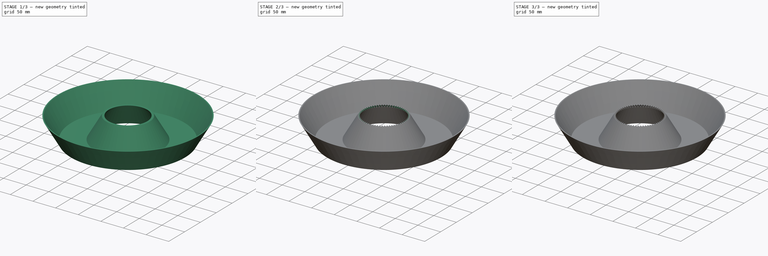
[diagram: build sequence overview — one tinted view per stage of 3, left to right]
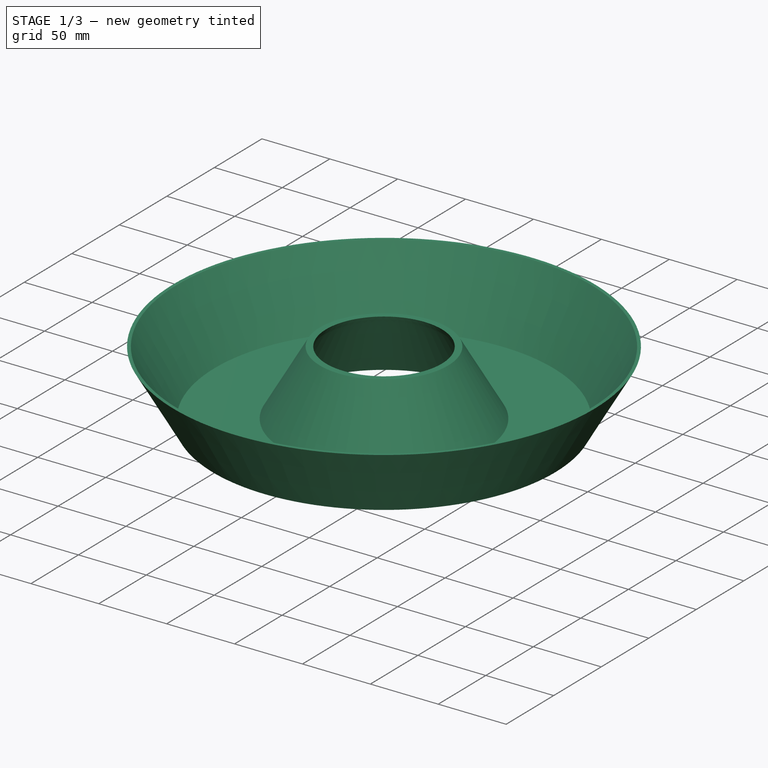
[diagram: stage 1 of 3 — iso view after this stage's code; geometry added in this stage tinted green]
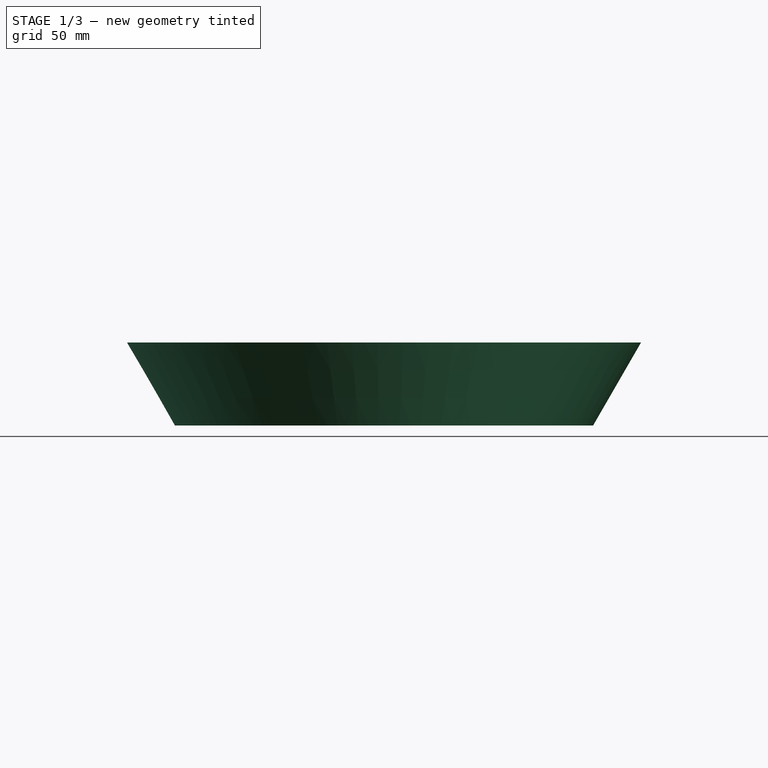
[diagram: stage 1 of 3 — front view after this stage's code; geometry added in this stage tinted green]
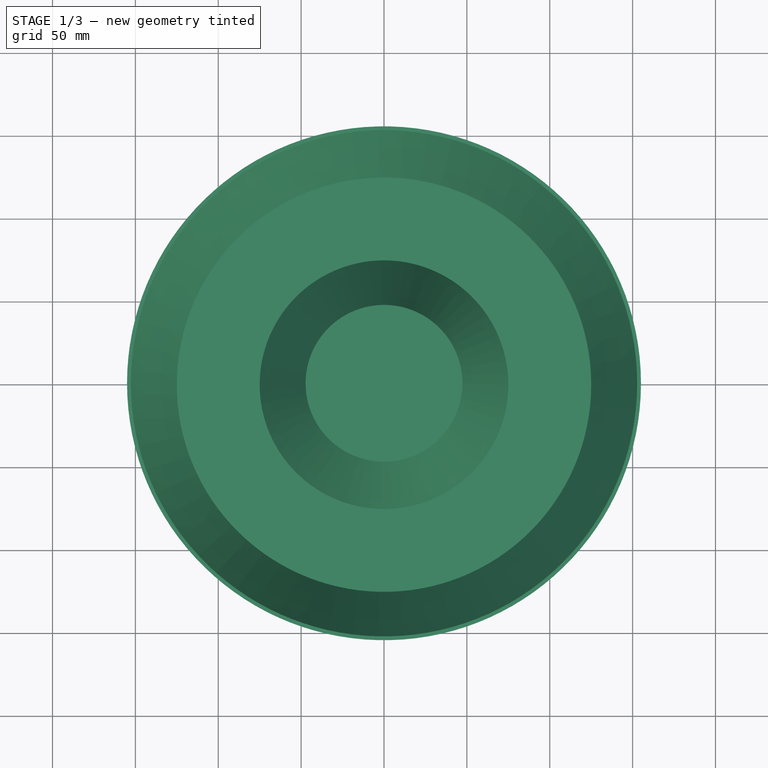
[diagram: stage 1 of 3 — top view after this stage's code; geometry added in this stage tinted green]
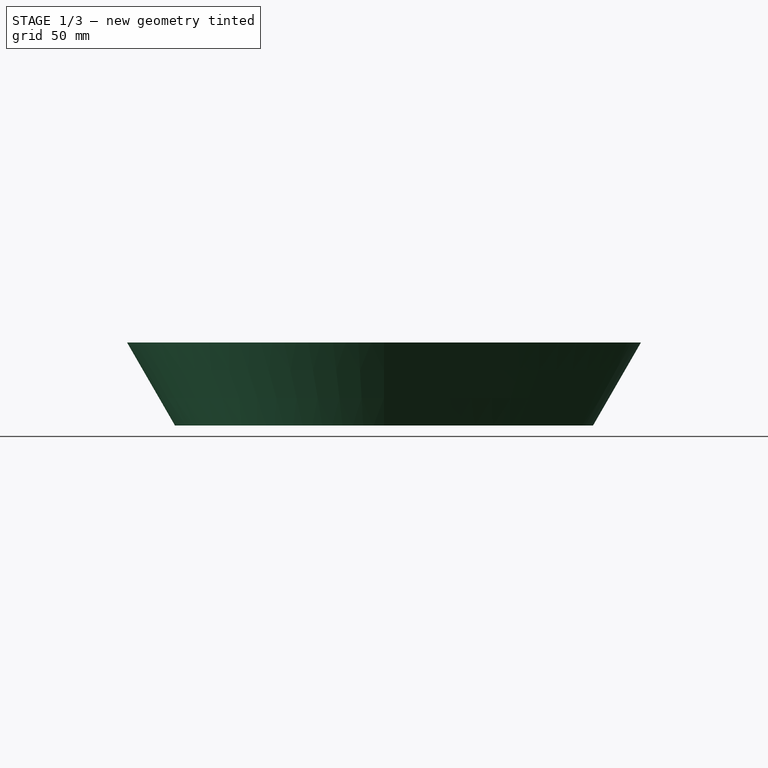
[diagram: stage 1 of 3 — right view after this stage's code; geometry added in this stage tinted green]
FCSTD DOCUMENT  (FreeCAD 1.1R42925 (Git))
Label: stepper_motor_gear
License: All rights reserved
LicenseURL: https://en.wikipedia.org/wiki/All_rights_reserved
objects: App::Point×3, Sketcher::SketchObject×3, PartDesign::Body×3, Part::FeaturePython×1, PartDesign::FeatureBase×1, PartDesign::Pocket×1, App::VarSet×1, Part::DatumPlane×1, PartDesign::AdditivePipe×1, PartDesign::FeaturePython×1, Part::Cut×1
note: 21 computed .brp shape members not serialized (recipe doc carries the construction recipe); baked Part::Feature solids carry a one-line shape summary decoded from their .brp

FEATURE [PartDesign::Body] Body  label="stepper_gear"
  AllowCompound = false
  BaseFeature = -> BevelGear
  Group = -> [BaseFeature,Sketch001,Pocket]
  Origin = -> Origin
  Tip = -> Pocket
FEATURE [App::Point] Origin003
  Role = Origin
FEATURE [Sketcher::SketchObject] Sketch
  ArcFitTolerance = 1e-06
  AttachmentSupport = -> [Origin002]
  ExternalTypes = [0]
  FullyConstrained = true
  MakeInternals = false
  MapMode = 5
  expr: Constraints[1] = 2 * VarSet.outer_ring_center_radius
  sketch-geometry (1):
    g0: Circle CenterX=0 CenterY=0 CenterZ=0 NormalX=0 NormalY=0 NormalZ=1 AngleXU=0 Radius=100
  constraints (2):
    c: Coincident(g0,g-1)
    c: Diameter(g0) = 200
FEATURE [App::VarSet] VarSet
  outer_ring_bottom_width = 50
  outer_ring_center_radius = 100
  outer_ring_height = 50
  outer_ring_sides_angle = 30
  wall_thickness = 2
  expr: outer_ring_bottom_width = 50
  expr: outer_ring_center_radius = 100
  expr: outer_ring_height = 50
  expr: outer_ring_sides_angle = 30
FEATURE [Part::DatumPlane] DatumPlane
  AttachmentSupport = -> [Sketch]
  MapMode = 7
  Placement = pos=(100,0,0) rot=(1,0,0;1.5708rad)
FEATURE [Sketcher::SketchObject] Sketch002
  ArcFitTolerance = 1e-06
  AttachmentSupport = -> [DatumPlane]
  ExternalTypes = [0]
  FullyConstrained = true
  MakeInternals = false
  MapMode = 5
  Placement = pos=(100,0,0) rot=(1,0,0;1.5708rad)
  expr: Constraints[13] = VarSet.outer_ring_height
  expr: Constraints[16] = VarSet.outer_ring_sides_angle
  expr: Constraints[17] = VarSet.outer_ring_sides_angle
  expr: Constraints[19] = 5
  expr: Constraints[21] = VarSet.wall_thickness * 2
  expr: Constraints[24] = VarSet.wall_thickness
  expr: Constraints[28] = VarSet.outer_ring_bottom_width
  expr: Constraints[7] = VarSet.wall_thickness
  expr: Constraints[8] = VarSet.outer_ring_height
  expr: Constraints[9] = VarSet.wall_thickness
  sketch-geometry (10):
    g0: LineSegment StartX=26.1547 StartY=0 StartZ=0 EndX=55.0222 EndY=50 EndZ=0
    g1: LineSegment StartX=55.0222 StartY=50 StartZ=0 EndX=52.7128 EndY=50 EndZ=0
    g2: LineSegment StartX=52.7128 StartY=50 StartZ=0 EndX=25 EndY=2 EndZ=0
    g3: LineSegment StartX=25 StartY=2 StartZ=0 EndX=-25 EndY=2 EndZ=0
    g4: LineSegment StartX=-25 StartY=2 StartZ=0 EndX=-52.7128 EndY=50 EndZ=0
    g5: LineSegment StartX=-52.7128 StartY=50 StartZ=0 EndX=-57.3316 EndY=50 EndZ=0
    g6: LineSegment StartX=-26.1547 StartY=0 StartZ=0 EndX=26.1547 EndY=0 EndZ=0
    g7: LineSegment StartX=-57.3316 StartY=50 StartZ=0 EndX=-54.4449 EndY=45 EndZ=0
    g8: LineSegment StartX=-52.1355 StartY=45 StartZ=0 EndX=-26.1547 EndY=0 EndZ=0
    g9: LineSegment StartX=-52.1355 StartY=45 StartZ=0 EndX=-54.4449 EndY=45 EndZ=0
  constraints (29):
    c: Coincident(g1,g0)
    c: Coincident(g1,g2)
    c: Coincident(g2,g3)
    c: Coincident(g3,g4)
    c: Coincident(g4,g5)
    c: Horizontal(g5)
    c: Coincident(g6,g0)
    c: Distance(g0,g2) = 2
    c: DistanceY(g6,g4) = 50
    c: DistanceY(g6,g3) = 2
    c: Parallel(g3,g6)
    c: Parallel(g1,g-1)
    c: Parallel(g0,g2)
    c: Distance(g-1,g1) = 50
    c: Symmetric(g6,g0,g-2)
    c: PointOnObject(g0,g-1)
    c: Angle(g2,g-2) = 0.523599
    c: Angle(g-2,g4) = 0.523599
    c: Coincident(g7,g5)
    c: DistanceY(g7,g5) = 5
    c: Parallel(g7,g4)
    c: Distance(g4,g7) = 4
    c: Coincident(g8,g6)
    c: Parallel(g8,g4)
    c: Distance(g4,g8) = 2
    c: Coincident(g9,g8)
    c: Coincident(g9,g7)
    c: Parallel(g9,g5)
    c: DistanceX(g3,g3) = 50
FEATURE [PartDesign::AdditivePipe] AdditivePipe
  AuxiliaryCurvilinear = true
  AuxiliarySpineTangent = false
  Binormal = (0,0,0)
  Mode = 0
  Placement = pos=(100,0,0) rot=(1,0,0;1.5708rad)
  Profile = -> Sketch002
  Refine = true
  Spine = -> Sketch
  SpineTangent = false
  Suppressed = false
  Transformation = 0
  Transition = 0
FEATURE [PartDesign::Body] Body001  label="outer_sections_ring_gear"
  AllowCompound = false
  Group = -> [Sketch,DatumPlane,Sketch002,AdditivePipe]
  Origin = -> Origin002
  Tip = -> AdditivePipe
FEATURE [App::Point] Origin005
  Role = Origin
FEATURE [PartDesign::FeaturePython] BevelGear001  # WARN: FeaturePython — macro-defined, semantics opaque (R4)
  AttacherType = Attacher::AttachEngine3D
  Suppressed = false
  angular_backlash = 0
  backlash = 0
  beta = 0
  clearance = 0.1
  dw = 96
  height = 5
  module = 1.5
  num_teeth = 64
  numpoints = 20
  pitch_angle = 30
  pressure_angle = 20
  reset_origin = true
  version = 1.3.0
  expr: angular_backlash = backlash / dw * 360 ° / pi
  expr: dw = num_teeth * module
  expr: module = 1.5
  expr: num_teeth = 64
  expr: pitch_angle = 30
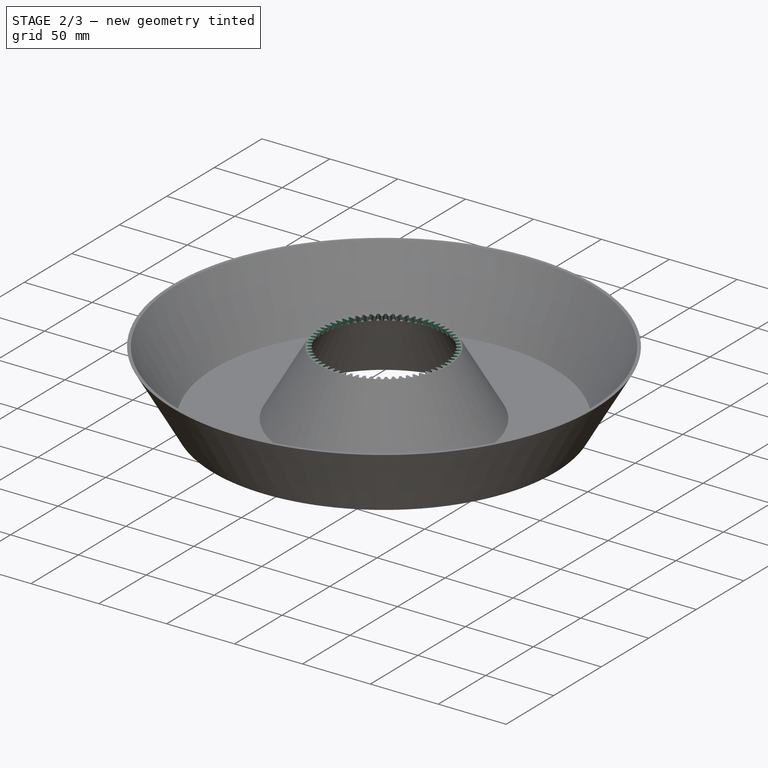
[diagram: stage 2 of 3 — iso view after this stage's code; geometry added in this stage tinted green]
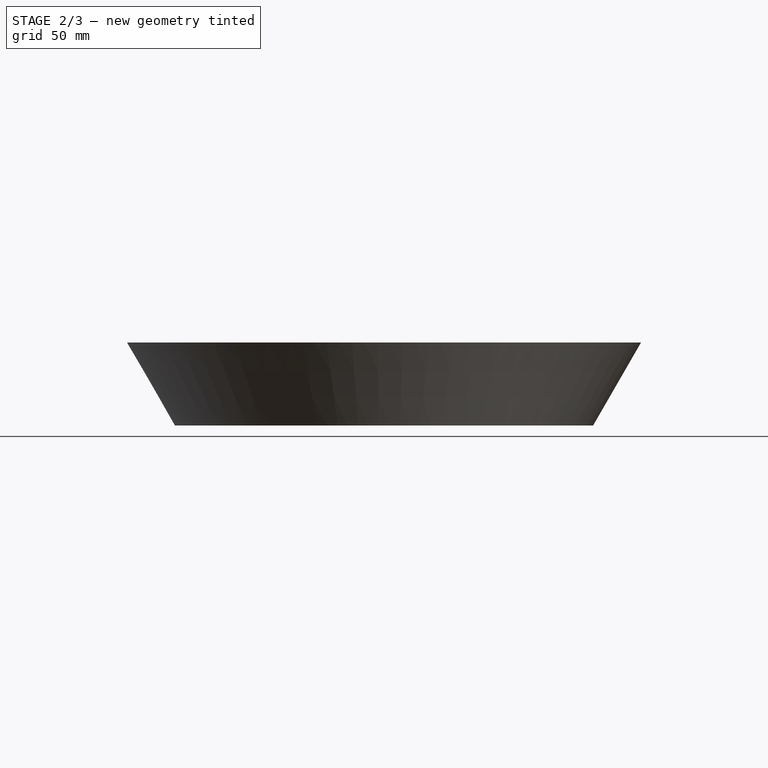
[diagram: stage 2 of 3 — front view after this stage's code; geometry added in this stage tinted green]
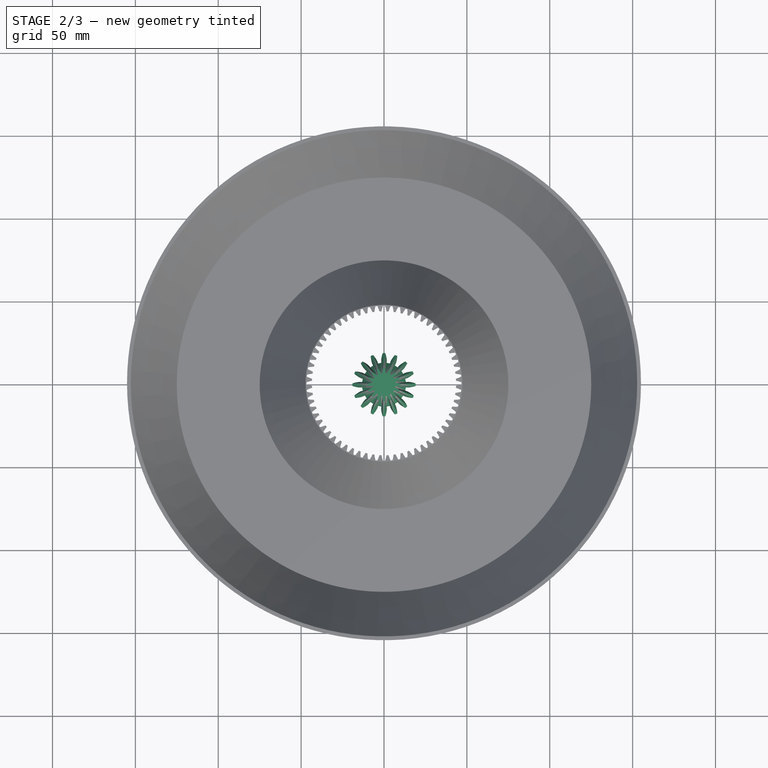
[diagram: stage 2 of 3 — top view after this stage's code; geometry added in this stage tinted green]
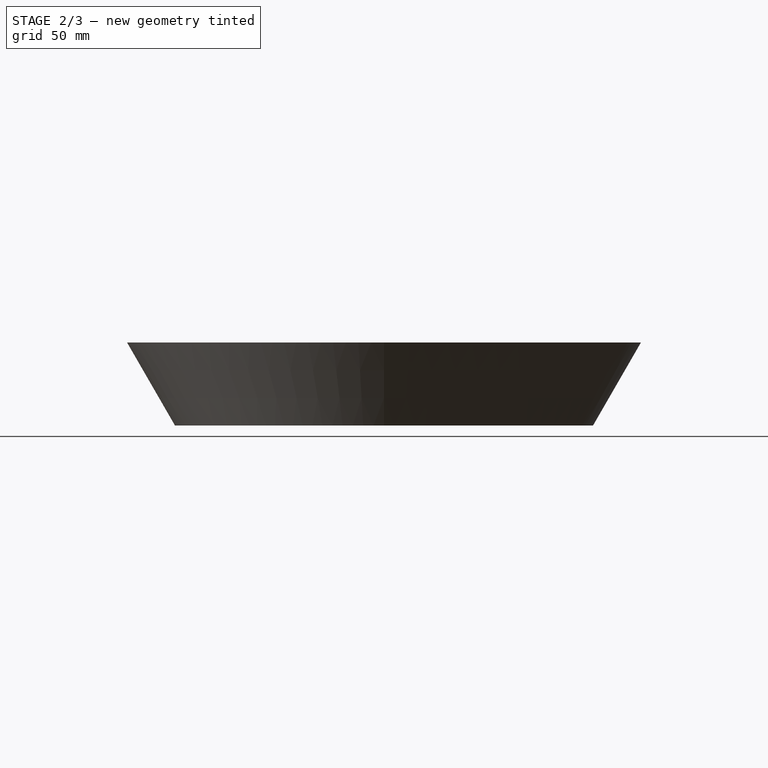
[diagram: stage 2 of 3 — right view after this stage's code; geometry added in this stage tinted green]
FEATURE [App::Point] Origin001
  Role = Origin
FEATURE [Sketcher::SketchObject] Sketch001
  ArcFitTolerance = 1e-06
  ExternalTypes = [0]
  FullyConstrained = true
  MakeInternals = false
  MapMode = 5
  Placement = pos=(0,0,0) rot=(1,0,0;3.14159rad)
  expr: Constraints[10] = 3.1
  expr: Constraints[11] = 2.6
  sketch-geometry (4):
    g0: LineSegment StartX=-1.55 StartY=2.08746 StartZ=0 EndX=-1.55 EndY=-2.08746 EndZ=0
    g1: LineSegment StartX=1.55 StartY=2.08746 StartZ=0 EndX=1.55 EndY=-2.08746 EndZ=0
    g2: ArcOfCircle CenterX=0 CenterY=0 CenterZ=0 NormalX=0 NormalY=0 NormalZ=1 AngleXU=0 Radius=2.6 StartAngle=0.932094 EndAngle=2.2095
    g3: ArcOfCircle CenterX=0 CenterY=0 CenterZ=0 NormalX=0 NormalY=0 NormalZ=1 AngleXU=0 Radius=2.6 StartAngle=4.07369 EndAngle=5.35109
  constraints (12):
    c: Vertical(g1)
    c: Coincident(g2,g-1)
    c: Coincident(g2,g0)
    c: Coincident(g2,g1)
    c: Coincident(g3,g2)
    c: Coincident(g3,g0)
    c: Coincident(g3,g1)
    c: Parallel(g1,g0)
    c: Equal(g1,g0)
    c: Equal(g2,g3)
    c: Distance(g0,g1) = 3.1
    c: Radius(g2) = 2.6
FEATURE [Part::FeaturePython] BevelGear  # WARN: FeaturePython — macro-defined, semantics opaque (R4)
  AttacherType = Attacher::AttachEngine3D
  angular_backlash = 0
  backlash = 0
  beta = 0
  clearance = 0.1
  dw = 32
  height = 7.5
  module = 2
  num_teeth = 16
  numpoints = 20
  pitch_angle = 45
  pressure_angle = 20
  reset_origin = true
  version = 1.3.0
  expr: angular_backlash = backlash / dw * 360 ° / pi
  expr: dw = num_teeth * module
  expr: height = 7.5
  expr: module = 2
  expr: num_teeth = 16
FEATURE [PartDesign::Body] Body002  label="Body"
  AllowCompound = false
  Group = -> [BevelGear001]
  Origin = -> Origin004
  Placement = pos=(0,0,45) rot=(0,0,1;0rad)
  Tip = -> BevelGear001
FEATURE [Part::Cut] Cut
  Base = -> Body001
  Refine = true
  Tool = -> Body002
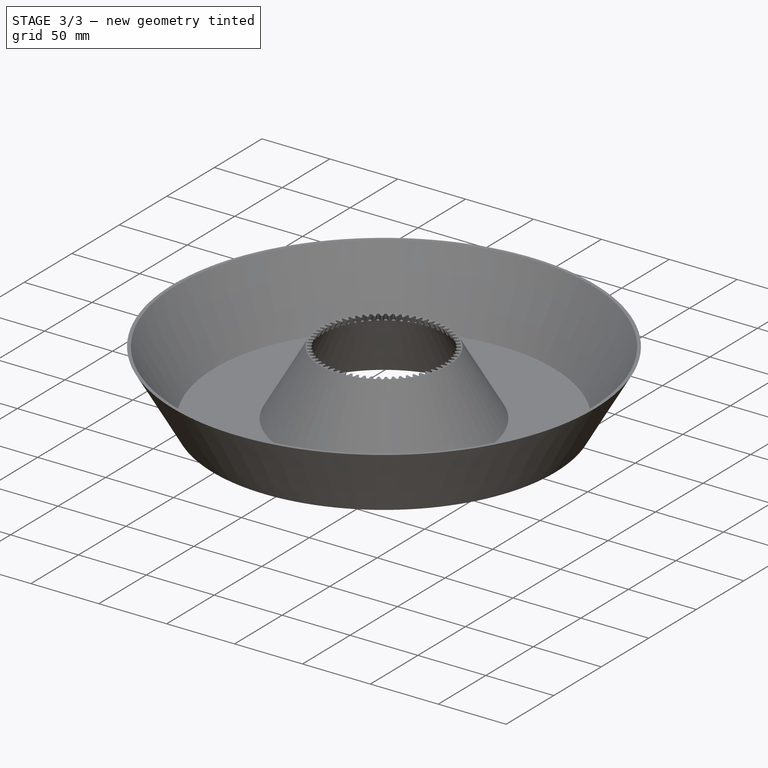
[diagram: stage 3 of 3 — iso view after this stage's code; geometry added in this stage tinted green]
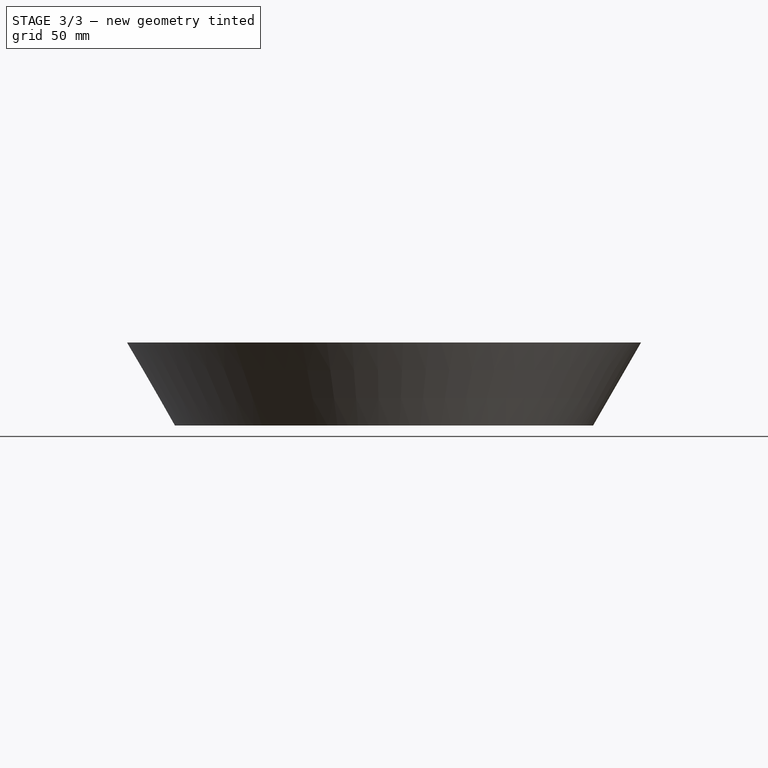
[diagram: stage 3 of 3 — front view after this stage's code; geometry added in this stage tinted green]
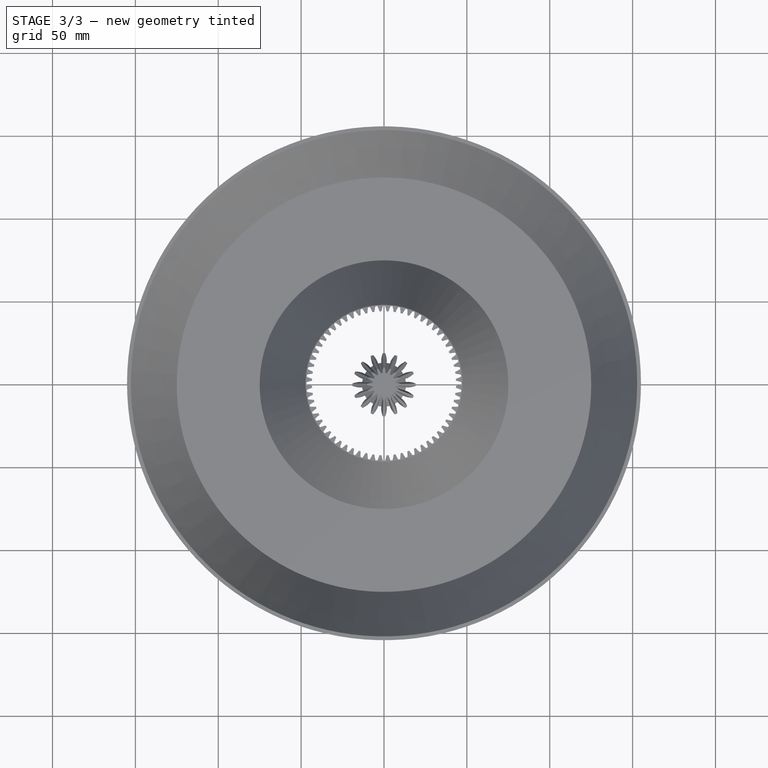
[diagram: stage 3 of 3 — top view after this stage's code; geometry added in this stage tinted green]
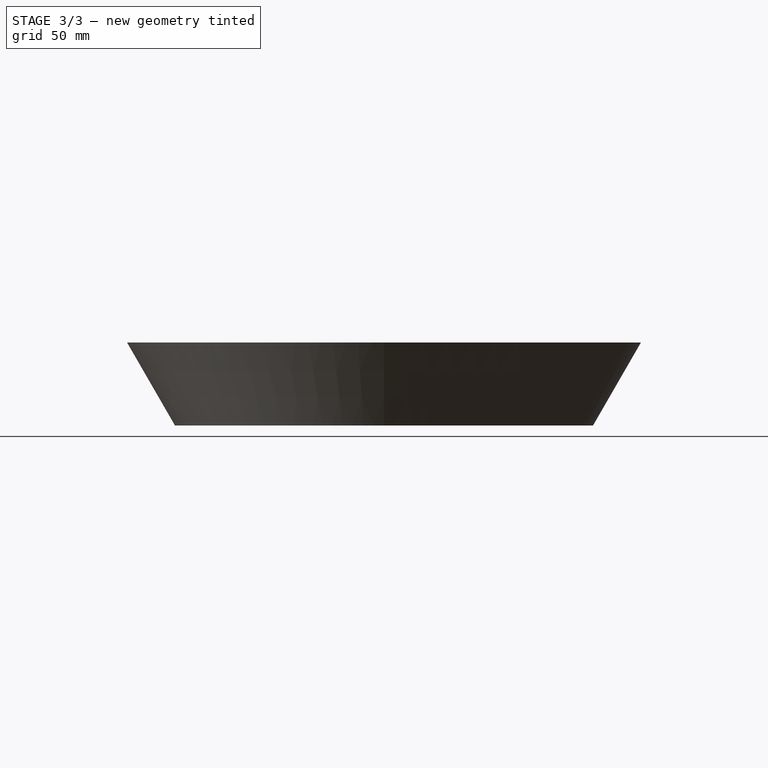
[diagram: stage 3 of 3 — right view after this stage's code; geometry added in this stage tinted green]
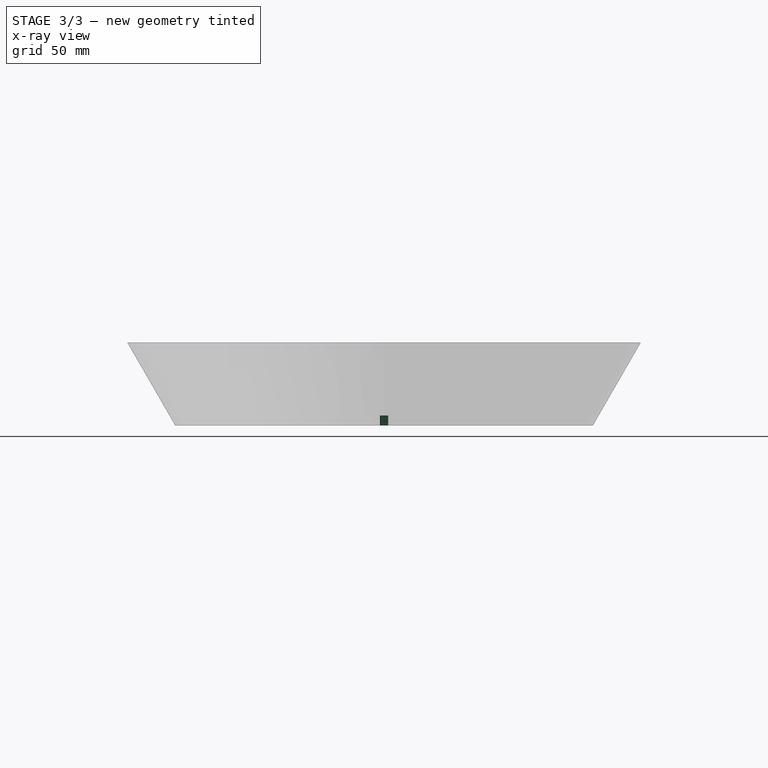
[diagram: stage 3 of 3 — x-ray composite at the right view; earlier geometry ghosted, this stage's added geometry solid]
FEATURE [PartDesign::FeatureBase] BaseFeature
  BaseFeature = -> BevelGear
  Suppressed = false
FEATURE [PartDesign::Pocket] Pocket
  BaseFeature = -> BaseFeature
  Direction = (0,0,1)
  Length = 6
  Length2 = 5
  Profile = -> Sketch001
  ReferenceAxis = -> Sketch001 [N_Axis]
  Refine = true
  Suppressed = false
  Type = 0
  expr: Length = 6
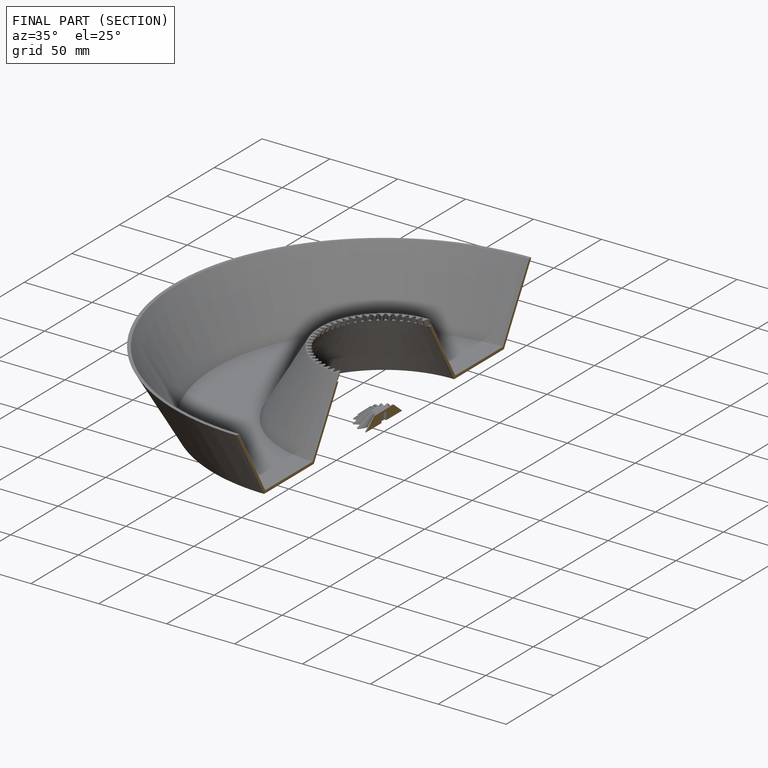
[diagram: finished part — half-section view (interior)]
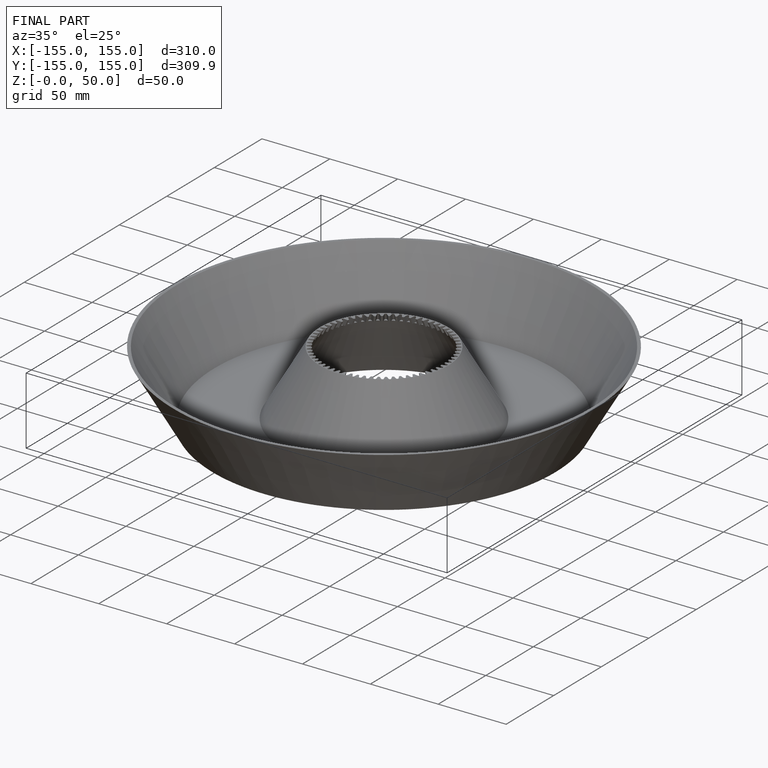
[diagram: finished part — iso view with bounding-box wireframe]
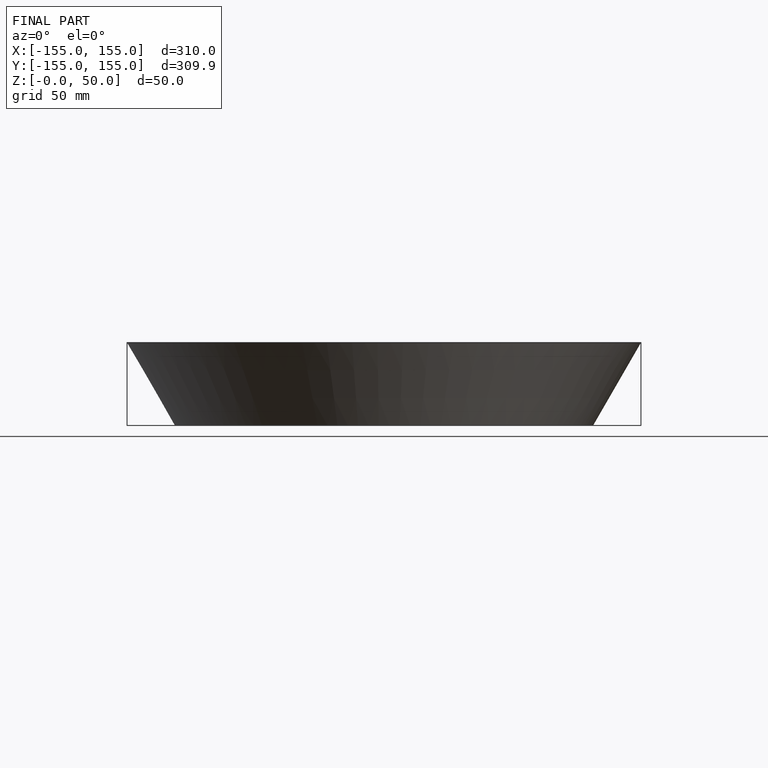
[diagram: finished part — front view with bounding-box wireframe]
